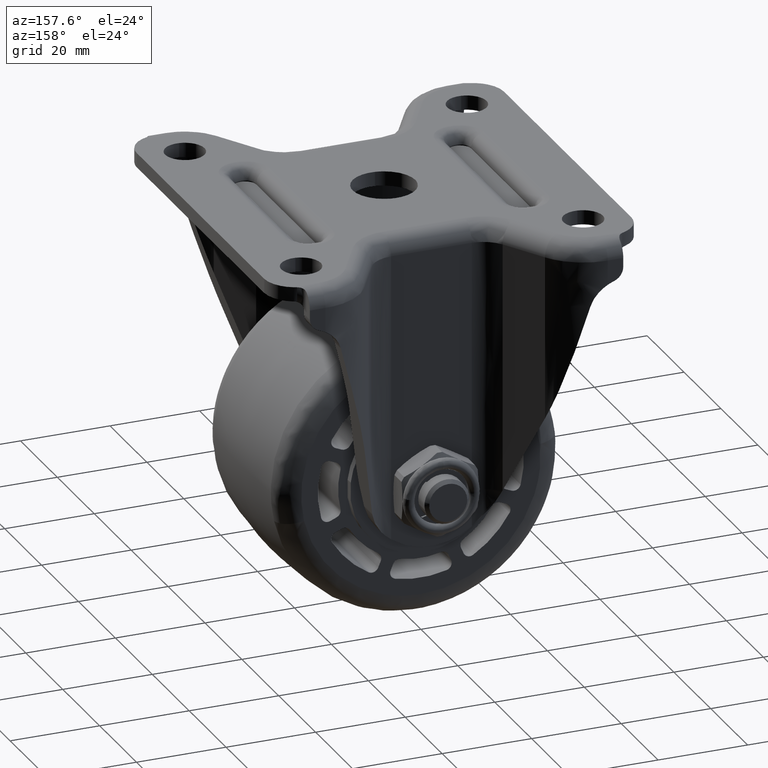
[diagram: clean part render]
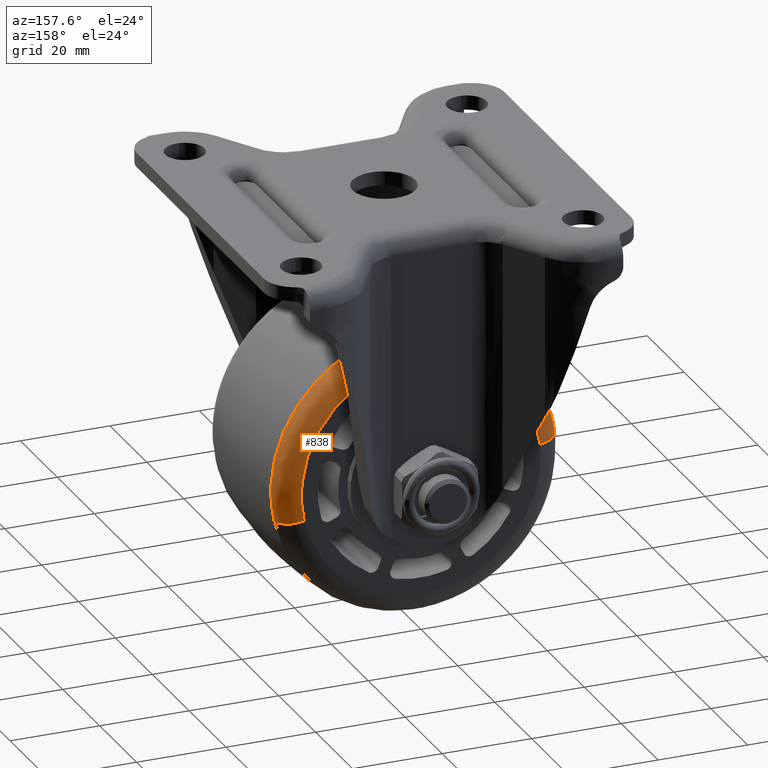
[diagram: same view with one face highlighted and labeled with its STEP entity id]
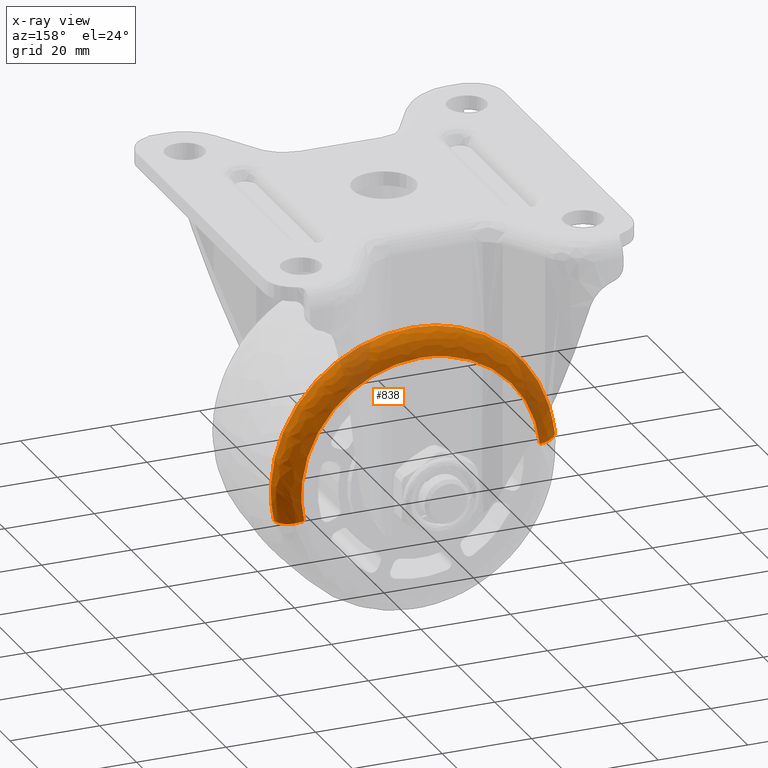
[diagram: x-ray of the same camera — body ghosted, the highlighted face saturated]
A machine part, auxiliary view. The second image highlights one B-rep face of the part: STEP entity #838.
The next image is the same camera in x-ray: the body ghosted, the highlighted face saturated — about 16% of this face is hidden behind the body in this view.
In plain terms, the highlighted face is a freeform B-spline surface patch.
Its self-contained STEP definition (entity closure, byte-faithful):
#633=CARTESIAN_POINT('',(26.099642444681489,20.0,-63.233795155336438));
#634=VERTEX_POINT('',#633);
#650=CARTESIAN_POINT('',(30.956984872596859,15.517244432092880,-64.300898144533846));
#651=VERTEX_POINT('',#650);
#652=CARTESIAN_POINT('',(30.956984872596863,15.517244432092880,-64.300898144533846));
#653=CARTESIAN_POINT('',(30.501605768451160,20.000000128293042,-64.200856525120827));
#654=CARTESIAN_POINT('',(26.099642444681493,20.0,-63.233795155336438));
#662=(BOUNDED_CURVE()B_SPLINE_CURVE(2,(#652,#653,#654),.UNSPECIFIED.,.F.,.U.)B_SPLINE_CURVE_WITH_KNOTS((3,3),(-1.719199425646526,-0.290894269401013),.UNSPECIFIED.)CURVE()GEOMETRIC_REPRESENTATION_ITEM()RATIONAL_B_SPLINE_CURVE((0.853208950683842,0.632596910778980,0.850112743185326))REPRESENTATION_ITEM(''));
#663=EDGE_CURVE('',#651,#634,#662,.T.);
#695=CARTESIAN_POINT('',(-31.535192183478511,15.517259539841730,-54.319013286352742));
#696=VERTEX_POINT('',#695);
#712=CARTESIAN_POINT('',(-26.587126847215149,20.0,-54.818129638321437));
#713=VERTEX_POINT('',#712);
#714=CARTESIAN_POINT('',(-31.535192183478514,15.517259539841728,-54.319013286352742));
#715=CARTESIAN_POINT('',(-31.071295496209927,20.000000123445304,-54.365807013956882));
#716=CARTESIAN_POINT('',(-26.587126847215142,20.000000000000004,-54.818129638321452));
#724=(BOUNDED_CURVE()B_SPLINE_CURVE(2,(#714,#715,#716),.UNSPECIFIED.,.F.,.U.)B_SPLINE_CURVE_WITH_KNOTS((3,3),(-1.719196177420136,-0.290894269426348),.UNSPECIFIED.)CURVE()GEOMETRIC_REPRESENTATION_ITEM()RATIONAL_B_SPLINE_CURVE((0.891650459801202,0.661099992389603,0.888415796840125))REPRESENTATION_ITEM(''));
#725=EDGE_CURVE('',#696,#713,#724,.T.);
#745=CARTESIAN_POINT('',(-31.558338854774146,15.188673931465914,-54.316678458271888));
#746=CARTESIAN_POINT('',(-28.375017313046037,15.188673931465917,-22.758339603497749));
#747=CARTESIAN_POINT('',(3.183321541728104,15.188673931465914,-25.941661145225847));
#748=CARTESIAN_POINT('',(34.741660396502240,15.188673931465917,-29.124982686953949));
#749=CARTESIAN_POINT('',(31.558338854774146,15.188673931465914,-60.683321541728091));
#750=CARTESIAN_POINT('',(31.373942315184411,15.188673931465916,-62.511364484842645));
#751=CARTESIAN_POINT('',(30.979705516654725,15.188673931465917,-64.305889612102959));
#752=CARTESIAN_POINT('',(-31.365210083137615,20.329039002280300,-54.336159552695364));
#753=CARTESIAN_POINT('',(-28.201369635832993,20.329039002280304,-22.970949469557773));
#754=CARTESIAN_POINT('',(3.163840447304623,20.329039002280300,-26.134789916862374));
#755=CARTESIAN_POINT('',(34.529050530442241,20.329039002280304,-29.298630364167018));
#756=CARTESIAN_POINT('',(31.365210083137615,20.329039002280300,-60.663840447304608));
#757=CARTESIAN_POINT('',(31.181942002094104,20.329039002280314,-62.480696246199479));
#758=CARTESIAN_POINT('',(30.790117829557953,20.329039002280311,-64.264239349497942));
#759=CARTESIAN_POINT('',(-26.258343403186601,19.989068204669358,-54.851294357091525));
#760=CARTESIAN_POINT('',(-23.609637760278130,19.989068204669344,-28.592950953904932));
#761=CARTESIAN_POINT('',(2.648705642908471,19.989068204669358,-31.241656596813396));
#762=CARTESIAN_POINT('',(28.907049046095061,19.989068204669344,-33.890362239721867));
#763=CARTESIAN_POINT('',(26.258343403186601,19.989068204669358,-60.148705642908475));
#764=CARTESIAN_POINT('',(26.104914932784901,19.989068204669358,-61.669741955274816));
#765=CARTESIAN_POINT('',(25.776887361828038,19.989068204669358,-63.162889527271318));
#773=(BOUNDED_SURFACE()B_SPLINE_SURFACE(2,2,((#745,#752,#759),(#746,#753,#760),(#747,#754,#761),(#748,#755,#762),(#749,#756,#763),(#750,#757,#764),(#751,#758,#765)),.UNSPECIFIED.,.F.,.F.,.U.)B_SPLINE_SURFACE_WITH_KNOTS((3,2,2,3),(3,3),(0.0,52.552906571314921,105.105813142629800,109.310045668334990),(0.0,8.451088254481432),.UNSPECIFIED.)GEOMETRIC_REPRESENTATION_ITEM()RATIONAL_B_SPLINE_SURFACE(((0.915826305875386,0.637086402869849,0.912267147058236),(0.647586991273511,0.450488115671015,0.645070285938584),(0.915826305875386,0.637086402869849,0.912267147058236),(0.647586991273511,0.450488115671015,0.645070285938584),(0.915826305875386,0.637086402869849,0.912267147058236),(0.894367160707236,0.622158539893942,0.890891398168663),(0.876341478765990,0.609619134994180,0.872935769101423)))REPRESENTATION_ITEM('')SURFACE());
#774=CARTESIAN_POINT('',(0.0,20.0,-30.777953999999749));
#775=VERTEX_POINT('',#774);
#776=CARTESIAN_POINT('',(0.0,20.0,-30.777953999999749));
#777=CARTESIAN_POINT('',(26.722046000000244,19.999999999999996,-30.777953999999749));
#778=CARTESIAN_POINT('',(26.722046000000251,20.0,-57.500000000000000));
#779=CARTESIAN_POINT('',(26.722046000000251,20.000000000000004,-60.400678535763397));
#780=CARTESIAN_POINT('',(26.099642444681489,20.000000000000007,-63.233795155336445));
#788=(BOUNDED_CURVE()B_SPLINE_CURVE(2,(#776,#777,#778,#779,#780),.UNSPECIFIED.,.F.,.U.)B_SPLINE_CURVE_WITH_KNOTS((3,2,3),(0.0,0.250000000000000,0.286726879782087),.UNSPECIFIED.)CURVE()GEOMETRIC_REPRESENTATION_ITEM()RATIONAL_B_SPLINE_CURVE((1.0,0.707106781186548,1.0,0.956971783854600,0.926585904682078))REPRESENTATION_ITEM(''));
#789=EDGE_CURVE('',#775,#634,#788,.T.);
#790=ORIENTED_EDGE('',*,*,#789,.F.);
#791=CARTESIAN_POINT('',(-26.587126847215146,20.000000000000004,-54.818129638321444));
#792=CARTESIAN_POINT('',(-24.162170024512978,20.0,-30.777953999999756));
#793=CARTESIAN_POINT('',(0.0,20.0,-30.777953999999749));
#801=(BOUNDED_CURVE()B_SPLINE_CURVE(2,(#791,#792,#793),.UNSPECIFIED.,.F.,.U.)B_SPLINE_CURVE_WITH_KNOTS((3,3),(0.767423441087364,1.0),.UNSPECIFIED.)CURVE()GEOMETRIC_REPRESENTATION_ITEM()RATIONAL_B_SPLINE_CURVE((0.962019632119795,0.727519612158085,1.0))REPRESENTATION_ITEM(''));
#802=EDGE_CURVE('',#713,#775,#801,.T.);
#803=ORIENTED_EDGE('',*,*,#802,.F.);
#804=ORIENTED_EDGE('',*,*,#725,.F.);
#805=CARTESIAN_POINT('',(0.0,15.517241913492249,-25.804774863944999));
#806=VERTEX_POINT('',#805);
#807=CARTESIAN_POINT('',(-31.535192183478518,15.517259539841730,-54.319013286352742));
#808=CARTESIAN_POINT('',(-28.658934756222820,15.517249848880379,-25.804774892732791));
#809=CARTESIAN_POINT('',(0.0,15.517241913492249,-25.804774863944999));
#817=(BOUNDED_CURVE()B_SPLINE_CURVE(2,(#807,#808,#809),.UNSPECIFIED.,.F.,.U.)B_SPLINE_CURVE_WITH_KNOTS((3,3),(0.767423438940605,1.0),.UNSPECIFIED.)CURVE()GEOMETRIC_REPRESENTATION_ITEM()RATIONAL_B_SPLINE_CURVE((0.962019636448820,0.727519609643002,1.0))REPRESENTATION_ITEM(''));
#818=EDGE_CURVE('',#696,#806,#817,.T.);
#819=ORIENTED_EDGE('',*,*,#818,.T.);
#820=CARTESIAN_POINT('',(0.0,15.517241913492249,-25.804774863944999));
#821=CARTESIAN_POINT('',(31.695224116910691,15.517241805135509,-25.804774640050560));
#822=CARTESIAN_POINT('',(31.695222849568221,15.517243965924781,-57.499999258934693));
#823=CARTESIAN_POINT('',(31.695222711998163,15.517244200478505,-60.940516558977727));
#824=CARTESIAN_POINT('',(30.956984872596855,15.517244432092877,-64.300898144533846));
#832=(BOUNDED_CURVE()B_SPLINE_CURVE(2,(#820,#821,#822,#823,#824),.UNSPECIFIED.,.F.,.U.)B_SPLINE_CURVE_WITH_KNOTS((3,2,3),(0.0,0.250000000000000,0.286726881241410),.UNSPECIFIED.)CURVE()GEOMETRIC_REPRESENTATION_ITEM()RATIONAL_B_SPLINE_CURVE((1.0,0.707106781186547,1.0,0.956971782144896,0.926585902267343))REPRESENTATION_ITEM(''));
#833=EDGE_CURVE('',#806,#651,#832,.T.);
#834=ORIENTED_EDGE('',*,*,#833,.T.);
#835=ORIENTED_EDGE('',*,*,#663,.T.);
#836=EDGE_LOOP('',(#790,#803,#804,#819,#834,#835));
#837=FACE_OUTER_BOUND('',#836,.T.);
#838=ADVANCED_FACE('',(#837),#773,.T.);